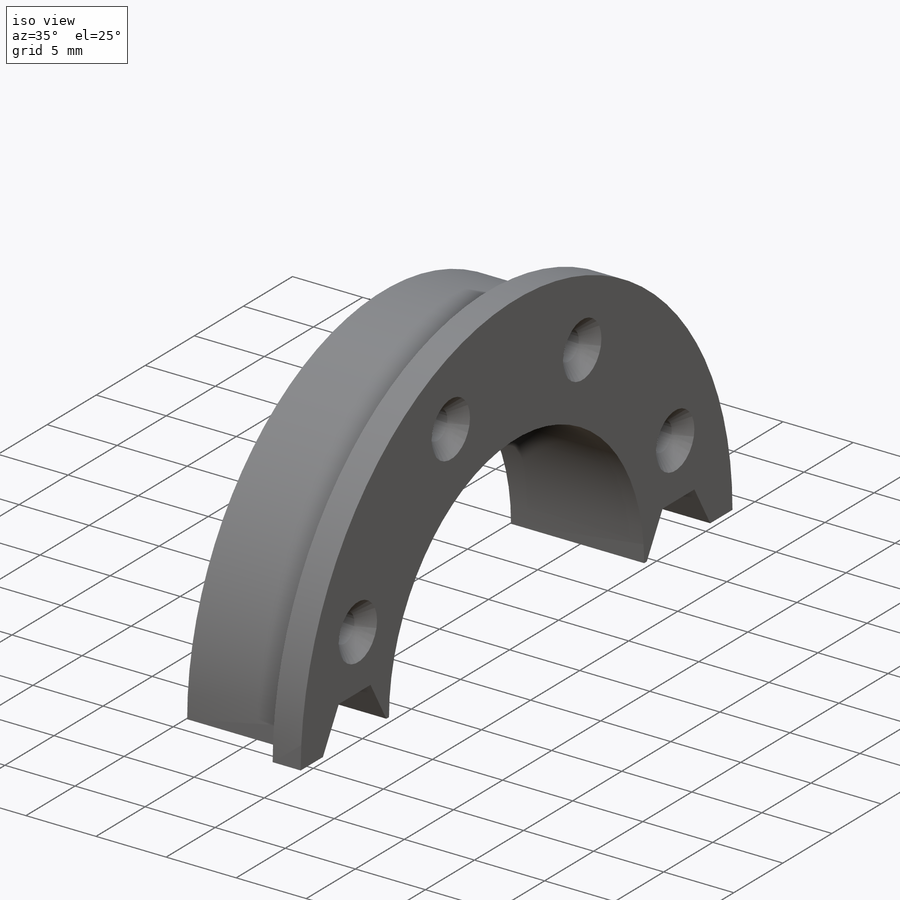
[diagram: iso view]
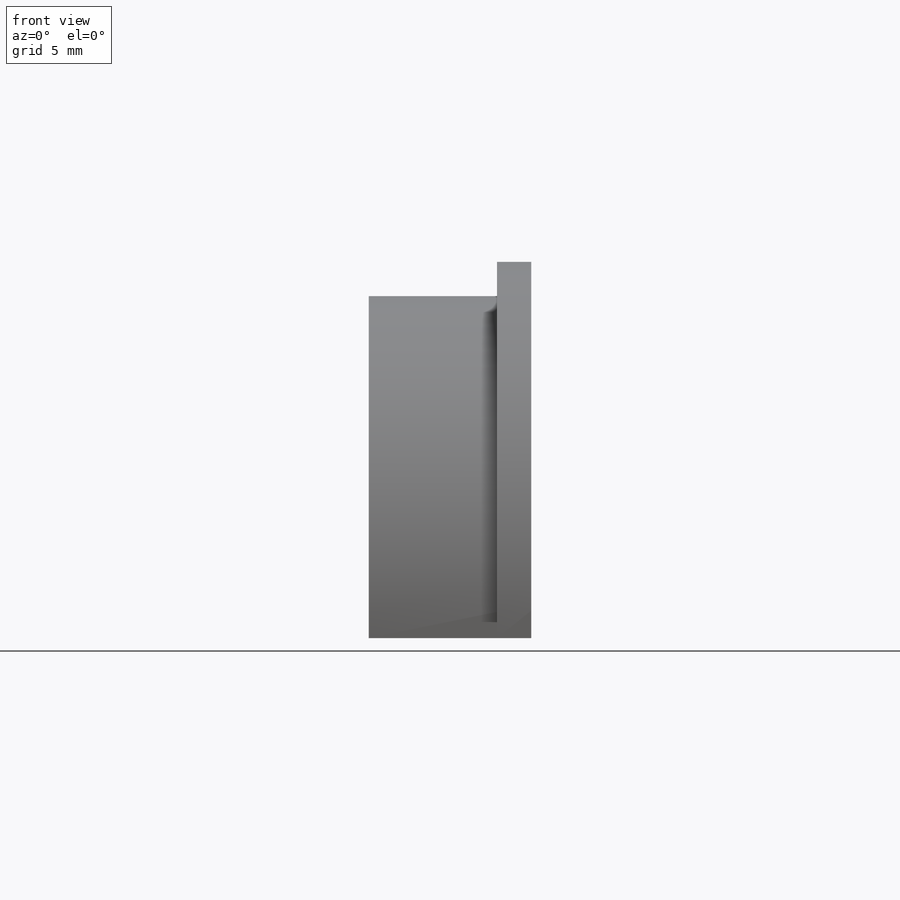
[diagram: front view]
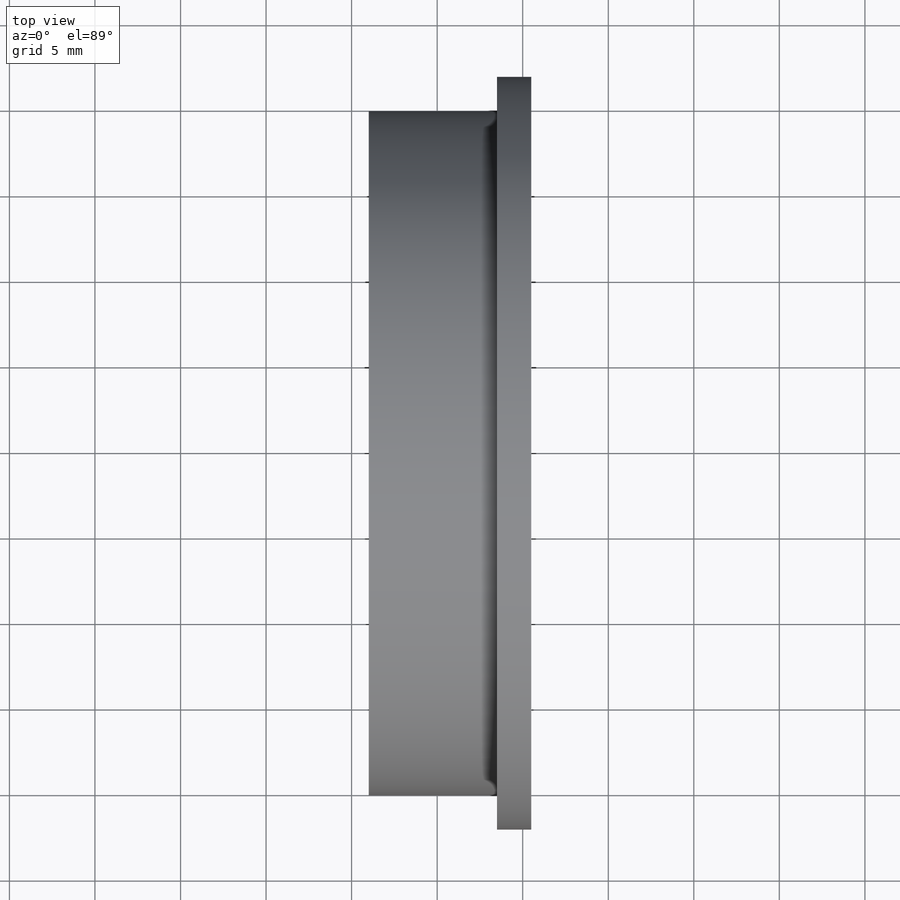
[diagram: top view]
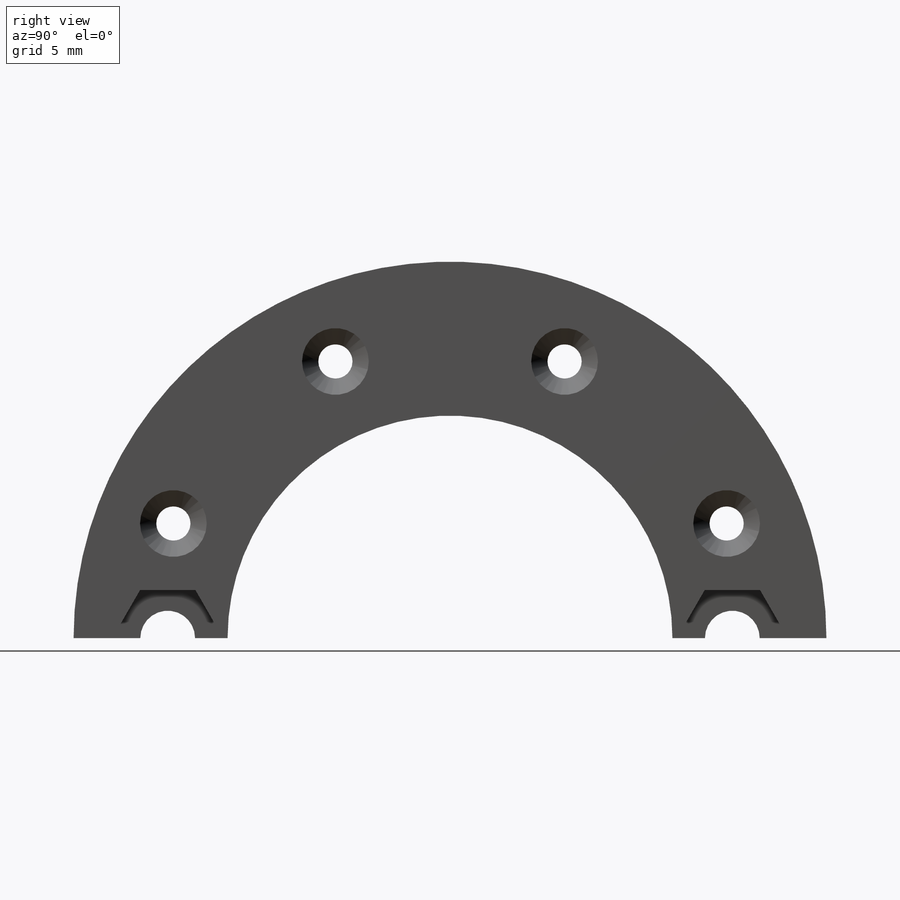
[diagram: right view]
SOLIDWORKS PART (.sldprt)
format: sldprt  version: not decoded by parser v0  size: 370,688 bytes
history: native  units: mm
features: sketch x11, cut_extrude x5, plane x3, material x1, revolve x1, hole x1, extrude x1, chamfer x1 (+9 scaffold rows collapsed)
feature tree (33):
  scaffold x9  (default folders/planes/origin — collapsed)
  material  "PVC hart"
  plane  "Ebene vorne"
  plane  "Ebene oben"
  plane  "Ebene rechts"
  sketch  "Skizze4"  dims[c1.D3=~13.84195mm c1.D1=0.5mm c1.D2=~1.968756mm c2.D2=135.0deg c2.D3=~0.682779mm c3.D2=0.5mm c3.D3=~1.074401mm c3.D1=0.7mm c4.D2=20.0mm c4.D1=7.0mm c5.D2=2.0mm c5.D3=2.0mm]
  revolve  "Rotation1"  Angle=180deg
  hole  "Formsenkung für M3 Senkschraube mit Innensechskant1"  Diameter=1.6mm Depth=12mm
  sketch  "Skizze10"  dims[c1.D1=~16.530117mm c2.D1=22.5deg c2.D2=~15.271836mm c3.D2=45.0deg c3.D3=2.5mm]
  sketch  "Skizze11"  dims[Bohrerdurchmesser=1.6mm Bohrungstiefe=12.0mm Senkdurchmesser (Oben)=3.9mm Senkwinkel (Oben)=90.0deg Spitzenwinkel=118.0deg]
  sketch  "Skizze12"  dims[D1=2.0mm]
  cut_extrude  "Schnitt-Linear austragen1"  [1 undecoded]
  sketch  "Skizze9"  dims[c1.D1=~3.992829mm c1.D2=4.0mm c1.D3=3.5mm c2.D2=7.0mm c2.D3=~5.566166mm c2.D1=~5.745721mm c3.D1=70.0deg c3.D3=0.5mm]
  cut_extrude  "Schnitt-Linear austragen2"  Depth=38mm
  cut_extrude  "Schnitt-Linear austragen3"  [1 undecoded]
  sketch  "Skizze9<5>"  dims[D1=33.0mm]
  sketch  "Skizze14"  dims[D1=1.0mm D2=2.0mm D3=1.1mm D4=2.1mm]
  extrude  "Aufsatz-Linear austragen1"  [1 undecoded]
  cut_extrude  "Schnitt-Linear austragen4"  [1 undecoded]
  sketch  "Skizze14<3>"
  chamfer  "Fase1"  Distance=0.1mm Angle=45deg
  sketch  "Skizze15"  dims[D1=5.6mm D2=~0.266838mm]
  cut_extrude  "Schnitt-Linear austragen5"  Depth=4mm
  sketch  "Skizze17"
  sketch  "Skizze16"  dims[hole-wizard template sketch: 42 standard entries collapsed; hole parameters kept: c12.Bohrungstiefe=9.5mm c12.Senkdurchmesser2=5.6mm c12.Senktiefe2=2.1mm]
decode coverage: 14 of 20 modeling features carry decoded parameters
note: ~ marks probable driven/reference dimensions
note: 4 parameter values undecoded
summary: no parameter record found for 4 features
note: suppression state not decoded; provenance and decode notes live in map.json
